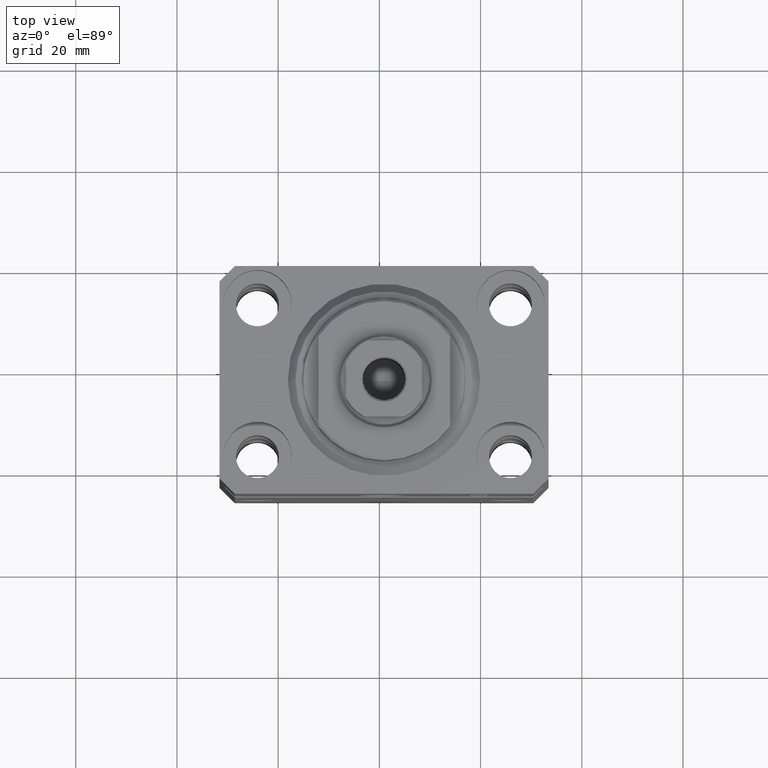
[diagram: clean part render]
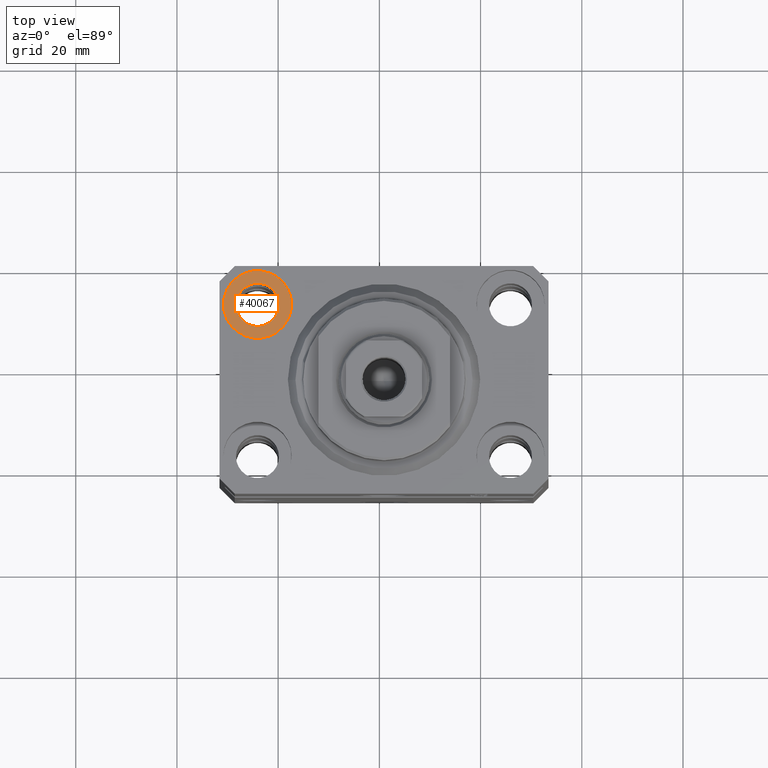
[diagram: same view with one face highlighted and labeled with its STEP entity id]
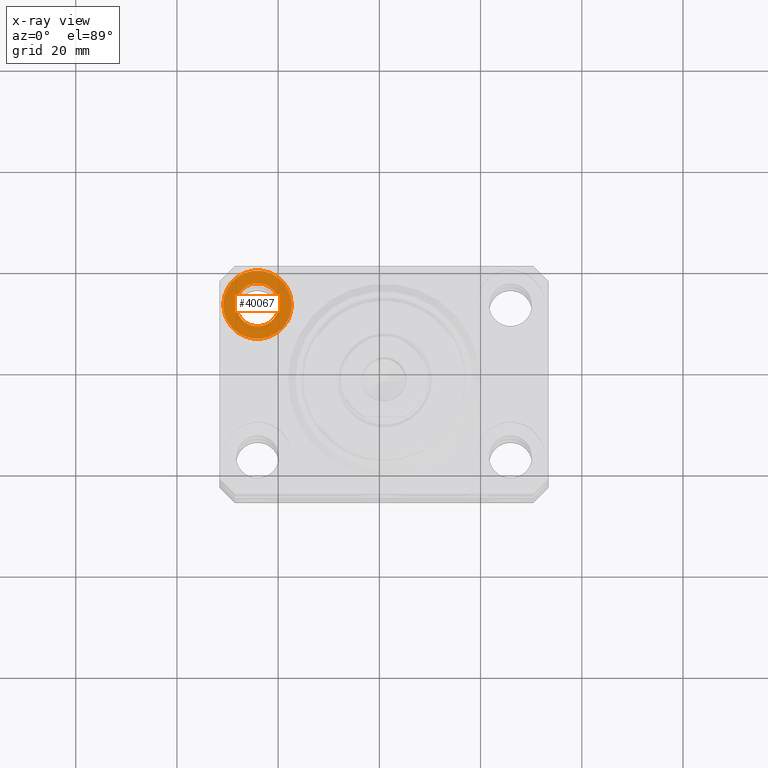
[diagram: x-ray of the same camera — body ghosted, the highlighted face saturated]
A machine part, top view. The second image highlights one B-rep face of the part: STEP entity #40067.
The next image is the same camera in x-ray: the body ghosted, the highlighted face saturated — about 0% of this face is hidden behind the body in this view.
In plain terms, the highlighted planar face has unit normal (0, 0, 1).
Its self-contained STEP definition (entity closure, byte-faithful):
#705 = AXIS2_PLACEMENT_3D ( 'NONE', #7368, #17835, #27609 ) ;
#1006 = CARTESIAN_POINT ( 'NONE',  ( -25.00000000000000355, 15.00000000000000000, -9.000000000000000000 ) ) ;
#1979 = CARTESIAN_POINT ( 'NONE',  ( -25.00000000000000355, 15.00000000000000000, -9.000000000000000000 ) ) ;
#4187 = DIRECTION ( 'NONE',  ( 0.000000000000000000, 0.000000000000000000, 1.000000000000000000 ) ) ;
#4861 = DIRECTION ( 'NONE',  ( 1.000000000000000000, 0.000000000000000000, 0.000000000000000000 ) ) ;
#5268 = VERTEX_POINT ( 'NONE', #26428 ) ;
#5829 = DIRECTION ( 'NONE',  ( 1.000000000000000000, 0.000000000000000000, 0.000000000000000000 ) ) ;
#6446 = PLANE ( 'NONE',  #36710 ) ;
#7210 = CIRCLE ( 'NONE', #705, 6.750000000022533087 ) ;
#7368 = CARTESIAN_POINT ( 'NONE',  ( -25.00000000000000355, 15.00000000000000000, -9.000000000000000000 ) ) ;
#7457 = AXIS2_PLACEMENT_3D ( 'NONE', #1979, #16514, #5829 ) ;
#8569 = AXIS2_PLACEMENT_3D ( 'NONE', #1006, #4187, #4861 ) ;
#10734 = CIRCLE ( 'NONE', #8569, 6.750000000022533087 ) ;
#11474 = EDGE_CURVE ( 'NONE', #22367, #5268, #29571, .T. ) ;
#12721 = EDGE_LOOP ( 'NONE', ( #18602, #42667 ) ) ;
#13469 = CARTESIAN_POINT ( 'NONE',  ( -31.75000000002253842, 15.00000000000000000, -9.000000000000000000 ) ) ;
#13686 = EDGE_CURVE ( 'NONE', #22398, #43552, #10734, .T. ) ;
#15582 = CARTESIAN_POINT ( 'NONE',  ( -25.00000000000000355, 15.00000000000000000, -9.000000000000000000 ) ) ;
#15995 = CARTESIAN_POINT ( 'NONE',  ( -20.74999999997746869, 15.00000000000000000, -9.000000000000000000 ) ) ;
#16514 = DIRECTION ( 'NONE',  ( 0.000000000000000000, 0.000000000000000000, 1.000000000000000000 ) ) ;
#16680 = FACE_BOUND ( 'NONE', #19142, .T. ) ;
#17835 = DIRECTION ( 'NONE',  ( 0.000000000000000000, 0.000000000000000000, 1.000000000000000000 ) ) ;
#18602 = ORIENTED_EDGE ( 'NONE', *, *, #19396, .T. ) ;
#19142 = EDGE_LOOP ( 'NONE', ( #25833, #29120 ) ) ;
#19386 = CARTESIAN_POINT ( 'NONE',  ( -18.24999999997747224, 15.00000000000000000, -9.000000000000000000 ) ) ;
#19396 = EDGE_CURVE ( 'NONE', #43552, #22398, #7210, .T. ) ;
#19852 = DIRECTION ( 'NONE',  ( 0.000000000000000000, 0.000000000000000000, 1.000000000000000000 ) ) ;
#21937 = DIRECTION ( 'NONE',  ( 0.000000000000000000, 0.000000000000000000, 1.000000000000000000 ) ) ;
#22367 = VERTEX_POINT ( 'NONE', #15995 ) ;
#22398 = VERTEX_POINT ( 'NONE', #13469 ) ;
#25833 = ORIENTED_EDGE ( 'NONE', *, *, #11474, .F. ) ;
#26428 = CARTESIAN_POINT ( 'NONE',  ( -29.25000000002254197, 15.00000000000000000, -9.000000000000000000 ) ) ;
#27609 = DIRECTION ( 'NONE',  ( 1.000000000000000000, 0.000000000000000000, 0.000000000000000000 ) ) ;
#29120 = ORIENTED_EDGE ( 'NONE', *, *, #29440, .F. ) ;
#29440 = EDGE_CURVE ( 'NONE', #5268, #22367, #42346, .T. ) ;
#29447 = DIRECTION ( 'NONE',  ( 1.000000000000000000, 0.000000000000000000, 0.000000000000000000 ) ) ;
#29571 = CIRCLE ( 'NONE', #40484, 4.250000000022537527 ) ;
#30550 = DIRECTION ( 'NONE',  ( 1.000000000000000000, 0.000000000000000000, -0.000000000000000000 ) ) ;
#36710 = AXIS2_PLACEMENT_3D ( 'NONE', #41469, #19852, #30550 ) ;
#40067 = ADVANCED_FACE ( 'NONE', ( #16680, #41248 ), #6446, .T. ) ;
#40484 = AXIS2_PLACEMENT_3D ( 'NONE', #15582, #21937, #29447 ) ;
#41248 = FACE_OUTER_BOUND ( 'NONE', #12721, .T. ) ;
#41469 = CARTESIAN_POINT ( 'NONE',  ( -25.00000000000000355, 15.00000000000000000, -9.000000000000000000 ) ) ;
#42346 = CIRCLE ( 'NONE', #7457, 4.250000000022537527 ) ;
#42667 = ORIENTED_EDGE ( 'NONE', *, *, #13686, .T. ) ;
#43552 = VERTEX_POINT ( 'NONE', #19386 ) ;